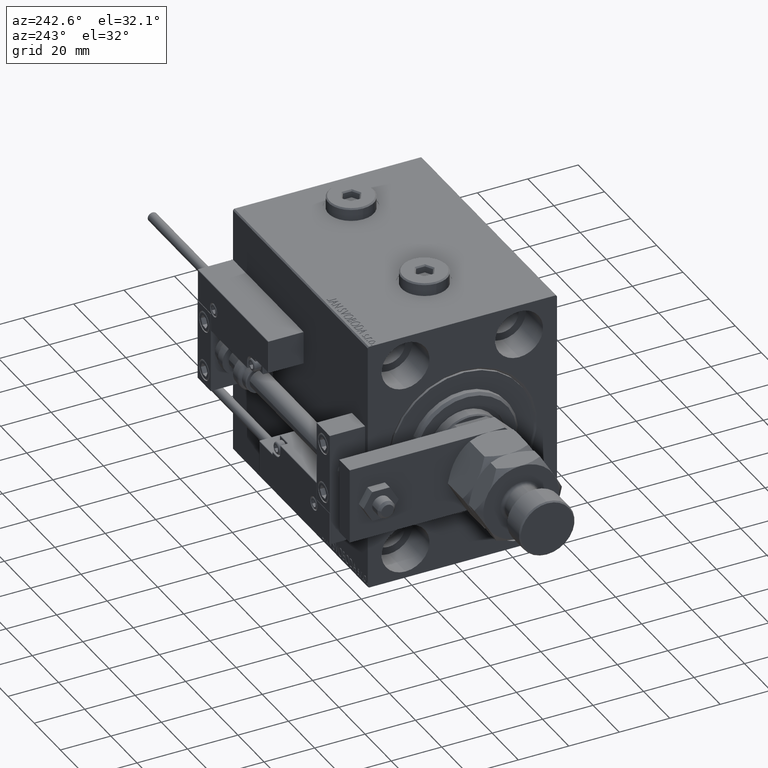
[diagram: clean part render]
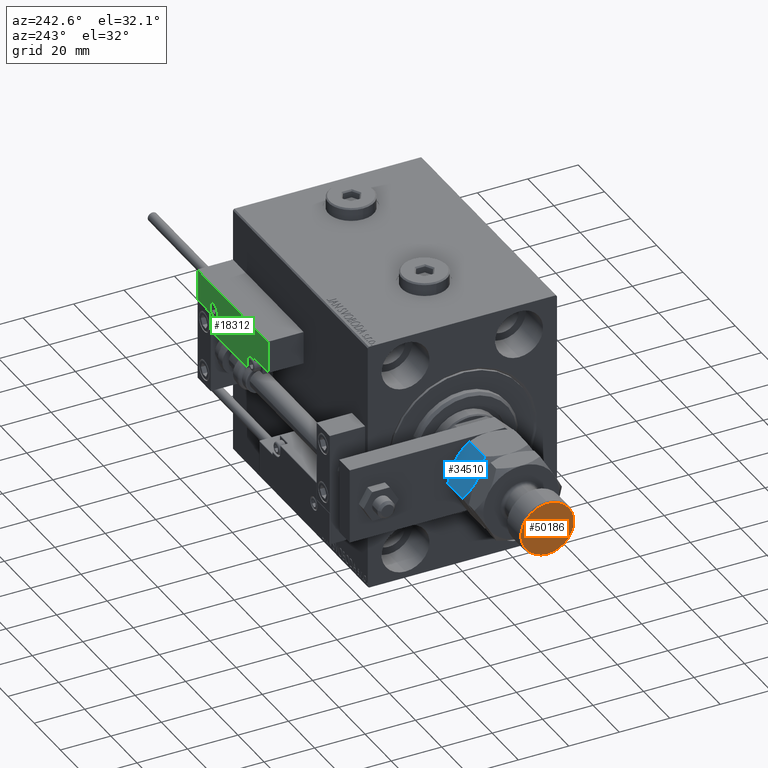
[diagram: same view with three faces highlighted in distinct colors, each labeled with its STEP entity id]
A machine part, auxiliary view with three faces highlighted in distinct colors.
Their STEP definitions:

[orange] entity #50186 — the highlighted planar face has unit normal (-1, 0, 0).
#2713 = ORIENTED_EDGE ( 'NONE', *, *, #11559, .T. ) ;
#7839 = PLANE ( 'NONE',  #14528 ) ;
#11559 = EDGE_CURVE ( 'NONE', #34586, #16373, #27942, .T. ) ;
#14244 = DIRECTION ( 'NONE',  ( 1.000000000000000000, 0.000000000000000000, 0.000000000000000000 ) ) ;
#14528 = AXIS2_PLACEMENT_3D ( 'NONE', #15681, #48579, #45868 ) ;
#15035 = EDGE_LOOP ( 'NONE', ( #2713, #27448 ) ) ;
#15403 = FACE_OUTER_BOUND ( 'NONE', #15035, .T. ) ;
#15681 = CARTESIAN_POINT ( 'NONE',  ( 0.000000000000000000, 0.000000000000000000, 45.00000000000000711 ) ) ;
#16373 = VERTEX_POINT ( 'NONE', #16659 ) ;
#16659 = CARTESIAN_POINT ( 'NONE',  ( 10.50000000000000178, 1.316495309083404815E-15, 45.00000000000000711 ) ) ;
#17157 = DIRECTION ( 'NONE',  ( 0.000000000000000000, 0.000000000000000000, 1.000000000000000000 ) ) ;
#22936 = CARTESIAN_POINT ( 'NONE',  ( -10.50000000000000178, 0.000000000000000000, 45.00000000000000711 ) ) ;
#23566 = CIRCLE ( 'NONE', #34724, 10.50000000000000178 ) ;
#27448 = ORIENTED_EDGE ( 'NONE', *, *, #48078, .T. ) ;
#27942 = CIRCLE ( 'NONE', #38253, 10.50000000000000178 ) ;
#33679 = CARTESIAN_POINT ( 'NONE',  ( 0.000000000000000000, 0.000000000000000000, 45.00000000000000711 ) ) ;
#34586 = VERTEX_POINT ( 'NONE', #22936 ) ;
#34724 = AXIS2_PLACEMENT_3D ( 'NONE', #33679, #38521, #14244 ) ;
#38253 = AXIS2_PLACEMENT_3D ( 'NONE', #45490, #17157, #50338 ) ;
#38521 = DIRECTION ( 'NONE',  ( 0.000000000000000000, 0.000000000000000000, 1.000000000000000000 ) ) ;
#45490 = CARTESIAN_POINT ( 'NONE',  ( 0.000000000000000000, 0.000000000000000000, 45.00000000000000711 ) ) ;
#45868 = DIRECTION ( 'NONE',  ( 1.000000000000000000, 0.000000000000000000, -0.000000000000000000 ) ) ;
#48078 = EDGE_CURVE ( 'NONE', #16373, #34586, #23566, .T. ) ;
#48579 = DIRECTION ( 'NONE',  ( 0.000000000000000000, 0.000000000000000000, 1.000000000000000000 ) ) ;
#50186 = ADVANCED_FACE ( 'NONE', ( #15403 ), #7839, .T. ) ;
#50338 = DIRECTION ( 'NONE',  ( 1.000000000000000000, 0.000000000000000000, 0.000000000000000000 ) ) ;

[blue] entity #34510 — the highlighted planar face has unit normal (-0, -0.866, -0.5).
#726 = VERTEX_POINT ( 'NONE', #41036 ) ;
#935 = CARTESIAN_POINT ( 'NONE',  ( 7.499999999999997335, 12.99038105676658184, 0.000000000000000000 ) ) ;
#1060 = CARTESIAN_POINT ( 'NONE',  ( 1.174746544192161846, 16.64226784216984356, 14.35773215783022572 ) ) ;
#1584 = CARTESIAN_POINT ( 'NONE',  ( 4.913081180497409939, 14.48393933357810504, 15.76967007806078946 ) ) ;
#1634 = AXIS2_PLACEMENT_3D ( 'NONE', #41560, #25385, #17279 ) ;
#2396 = CARTESIAN_POINT ( 'NONE',  ( 13.82389157469336283, 9.339280553791368789, 14.35851844025821400 ) ) ;
#2940 = CARTESIAN_POINT ( 'NONE',  ( 10.75222765045651663, 11.11270654730956586, 15.55242859148697576 ) ) ;
#2989 = EDGE_LOOP ( 'NONE', ( #5623, #27972, #43231, #30931, #34485, #47811 ) ) ;
#3952 = VERTEX_POINT ( 'NONE', #17572 ) ;
#3966 = CARTESIAN_POINT ( 'NONE',  ( 7.499999999999997335, 12.99038105676658184, 0.000000000000000000 ) ) ;
#5623 = ORIENTED_EDGE ( 'NONE', *, *, #9686, .F. ) ;
#6399 = VERTEX_POINT ( 'NONE', #20712 ) ;
#6446 = CARTESIAN_POINT ( 'NONE',  ( 8.156876182308252510, 12.61113341608665728, 16.00000000000000355 ) ) ;
#7956 = CARTESIAN_POINT ( 'NONE',  ( 7.621669386706803087E-17, 17.32050807568877104, 2.320508075688761718 ) ) ;
#8648 = PLANE ( 'NONE',  #1634 ) ;
#9011 = CARTESIAN_POINT ( 'NONE',  ( 6.176419610670692784, 13.75455055083996214, 0.05953537397470201609 ) ) ;
#9400 = CARTESIAN_POINT ( 'NONE',  ( 2.383929548160350631, 15.94414570932928576, 14.93952096862913059 ) ) ;
#9686 = EDGE_CURVE ( 'NONE', #28449, #6399, #26691, .T. ) ;
#12341 = CARTESIAN_POINT ( 'NONE',  ( 12.61607045183964715, 10.03661640420386902, 1.060479031370879843 ) ) ;
#12935 = CARTESIAN_POINT ( 'NONE',  ( 7.500000000000000000, 12.99038105676657651, 16.00000000000000000 ) ) ;
#13898 = EDGE_CURVE ( 'NONE', #6399, #3952, #32847, .T. ) ;
#16058 = CARTESIAN_POINT ( 'NONE',  ( 7.621669386706803087E-17, 17.32050807568877104, 2.320508075688761718 ) ) ;
#16899 = CARTESIAN_POINT ( 'NONE',  ( 15.00000000000000000, 8.660254037844389075, 2.320508075688765715 ) ) ;
#17279 = DIRECTION ( 'NONE',  ( 0.8660254037844387076, -0.4999999999999997224, 0.000000000000000000 ) ) ;
#17572 = CARTESIAN_POINT ( 'NONE',  ( 15.00000000000000000, 8.660254037844389075, 2.320508075688765715 ) ) ;
#19639 = B_SPLINE_CURVE_WITH_KNOTS ( 'NONE', 3,
 ( #48254, #2396, #51763, #2940, #47458, #44200, #6446, #39616 ),
 .UNSPECIFIED., .F., .F.,
 ( 4, 2, 2, 4 ),
 ( 2.544309033641602453E-07, 0.004488823491893906975, 0.006733108022389177119, 0.008977392552884448998 ),
 .UNSPECIFIED. ) ;
#20712 = CARTESIAN_POINT ( 'NONE',  ( 7.499999999999997335, 12.99038105676658184, 0.000000000000000000 ) ) ;
#21446 = CARTESIAN_POINT ( 'NONE',  ( 0.000000000000000000, 17.32050807568877104, 16.00000000000000000 ) ) ;
#21967 = CARTESIAN_POINT ( 'NONE',  ( 4.881674457977373649, 14.50207201327941320, 0.2838026619462936107 ) ) ;
#24279 = VERTEX_POINT ( 'NONE', #37193 ) ;
#24430 = CARTESIAN_POINT ( 'NONE',  ( 1.176108425306640504, 16.64148155974179843, 1.641481559741787111 ) ) ;
#25272 = CARTESIAN_POINT ( 'NONE',  ( 10.08691881950258740, 11.49682277995505331, 0.2303299219392160591 ) ) ;
#25276 = EDGE_CURVE ( 'NONE', #52059, #24279, #50170, .T. ) ;
#25385 = DIRECTION ( 'NONE',  ( -0.4999999999999997780, -0.8660254037844388186, 0.000000000000000000 ) ) ;
#25484 = CARTESIAN_POINT ( 'NONE',  ( 6.843123817691747490, 13.36962869744650639, -3.557538378468061917E-16 ) ) ;
#25606 = CARTESIAN_POINT ( 'NONE',  ( 3.803331551779305683E-16, 17.32050807568877104, 13.67949192431124317 ) ) ;
#26691 = B_SPLINE_CURVE_WITH_KNOTS ( 'NONE', 3,
 ( #7956, #24430, #40860, #53261, #21967, #9011, #25484, #935 ),
 .UNSPECIFIED., .F., .F.,
 ( 4, 2, 2, 4 ),
 ( 2.544309033652185071E-07, 0.004488823491893902638, 0.006733108022389172782, 0.008977392552884443794 ),
 .UNSPECIFIED. ) ;
#27972 = ORIENTED_EDGE ( 'NONE', *, *, #43256, .F. ) ;
#28449 = VERTEX_POINT ( 'NONE', #16058 ) ;
#29802 = EDGE_CURVE ( 'NONE', #726, #52059, #19639, .T. ) ;
#30931 = ORIENTED_EDGE ( 'NONE', *, *, #29802, .F. ) ;
#32847 = B_SPLINE_CURVE_WITH_KNOTS ( 'NONE', 3,
 ( #3966, #36855, #25272, #12341, #41444, #16899 ),
 .UNSPECIFIED., .F., .F.,
 ( 4, 2, 4 ),
 ( 0.008977392552884443794, 0.01343452311421656532, 0.01789165367554868685 ),
 .UNSPECIFIED. ) ;
#33045 = DIRECTION ( 'NONE',  ( -0.000000000000000000, -0.000000000000000000, -1.000000000000000000 ) ) ;
#33399 = LINE ( 'NONE', #44487, #40434 ) ;
#34485 = ORIENTED_EDGE ( 'NONE', *, *, #40017, .T. ) ;
#34510 = ADVANCED_FACE ( 'NONE', ( #49387 ), #8648, .F. ) ;
#36855 = CARTESIAN_POINT ( 'NONE',  ( 8.804550678576910983, 12.23719837131869426, -5.031375706690542042E-16 ) ) ;
#37193 = CARTESIAN_POINT ( 'NONE',  ( 3.803331551779305683E-16, 17.32050807568877104, 13.67949192431124317 ) ) ;
#37892 = LINE ( 'NONE', #21446, #44875 ) ;
#38533 = CARTESIAN_POINT ( 'NONE',  ( 6.195449321423087241, 13.74356374221446764, 16.00000000000000355 ) ) ;
#39616 = CARTESIAN_POINT ( 'NONE',  ( 7.500000000000000000, 12.99038105676657651, 16.00000000000000000 ) ) ;
#39946 = CARTESIAN_POINT ( 'NONE',  ( 7.500000000000000000, 12.99038105676657651, 16.00000000000000000 ) ) ;
#40017 = EDGE_CURVE ( 'NONE', #726, #3952, #33399, .T. ) ;
#40434 = VECTOR ( 'NONE', #50664, 1000.000000000000000 ) ;
#40860 = CARTESIAN_POINT ( 'NONE',  ( 2.378834511187503331, 15.94708733029709080, 1.064486067744004671 ) ) ;
#41036 = CARTESIAN_POINT ( 'NONE',  ( 15.00000000000000000, 8.660254037844389075, 13.67949192431123784 ) ) ;
#41444 = CARTESIAN_POINT ( 'NONE',  ( 13.82525345580783949, 9.338494271363313004, 1.642267842169781833 ) ) ;
#41560 = CARTESIAN_POINT ( 'NONE',  ( 15.00000000000000000, 8.660254037844389075, 16.00000000000000000 ) ) ;
#43231 = ORIENTED_EDGE ( 'NONE', *, *, #25276, .F. ) ;
#43256 = EDGE_CURVE ( 'NONE', #24279, #28449, #37892, .T. ) ;
#44200 = CARTESIAN_POINT ( 'NONE',  ( 8.823580389329306328, 12.22621156269319798, 15.94046462602529957 ) ) ;
#44487 = CARTESIAN_POINT ( 'NONE',  ( 15.00000000000000000, 8.660254037844389075, 16.00000000000000000 ) ) ;
#44875 = VECTOR ( 'NONE', #33045, 1000.000000000000000 ) ;
#47458 = CARTESIAN_POINT ( 'NONE',  ( 10.11832554202262457, 11.47869010025374514, 15.71619733805371411 ) ) ;
#47811 = ORIENTED_EDGE ( 'NONE', *, *, #13898, .F. ) ;
#48254 = CARTESIAN_POINT ( 'NONE',  ( 15.00000000000000000, 8.660254037844389075, 13.67949192431123784 ) ) ;
#49387 = FACE_OUTER_BOUND ( 'NONE', #2989, .T. ) ;
#50170 = B_SPLINE_CURVE_WITH_KNOTS ( 'NONE', 3,
 ( #12935, #38533, #1584, #9400, #1060, #25606 ),
 .UNSPECIFIED., .F., .F.,
 ( 4, 2, 4 ),
 ( 0.008977392552884448998, 0.01343452311421656706, 0.01789165367554868338 ),
 .UNSPECIFIED. ) ;
#50664 = DIRECTION ( 'NONE',  ( -0.000000000000000000, -0.000000000000000000, -1.000000000000000000 ) ) ;
#51763 = CARTESIAN_POINT ( 'NONE',  ( 12.62116548881249756, 10.03367478323606221, 14.93551393225599710 ) ) ;
#52059 = VERTEX_POINT ( 'NONE', #39946 ) ;
#53261 = CARTESIAN_POINT ( 'NONE',  ( 4.247772349543482484, 14.86805556622358893, 0.4475714085130255149 ) ) ;

[green] entity #18312 — the highlighted planar face has unit normal (0, 1, -0).
#1555 = VERTEX_POINT ( 'NONE', #20301 ) ;
#1560 = EDGE_CURVE ( 'NONE', #44422, #36972, #21518, .T. ) ;
#2404 = LINE ( 'NONE', #18596, #7245 ) ;
#2581 = LINE ( 'NONE', #19038, #29599 ) ;
#2773 = FACE_OUTER_BOUND ( 'NONE', #29240, .T. ) ;
#3345 = LINE ( 'NONE', #27627, #39531 ) ;
#3702 = LINE ( 'NONE', #24994, #9023 ) ;
#5523 = CIRCLE ( 'NONE', #39087, 3.299999999999997158 ) ;
#5590 = ORIENTED_EDGE ( 'NONE', *, *, #50034, .T. ) ;
#6432 = DIRECTION ( 'NONE',  ( 0.000000000000000000, -0.000000000000000000, -1.000000000000000000 ) ) ;
#6455 = VECTOR ( 'NONE', #7426, 1000.000000000000000 ) ;
#6852 = CARTESIAN_POINT ( 'NONE',  ( -11.99999999999994849, 9.800000000000004263, 14.00000000000000000 ) ) ;
#7245 = VECTOR ( 'NONE', #52300, 1000.000000000000000 ) ;
#7411 = VERTEX_POINT ( 'NONE', #9954 ) ;
#7426 = DIRECTION ( 'NONE',  ( -0.000000000000000000, 1.000000000000000000, -0.000000000000000000 ) ) ;
#8334 = VECTOR ( 'NONE', #46246, 1000.000000000000000 ) ;
#9023 = VECTOR ( 'NONE', #27978, 1000.000000000000000 ) ;
#9684 = DIRECTION ( 'NONE',  ( 1.000000000000000000, 0.000000000000000000, 0.000000000000000000 ) ) ;
#9714 = ORIENTED_EDGE ( 'NONE', *, *, #51315, .T. ) ;
#9954 = CARTESIAN_POINT ( 'NONE',  ( 26.70000000000006324, 19.70000000000001705, 14.00000000000000000 ) ) ;
#10556 = EDGE_CURVE ( 'NONE', #36972, #44422, #38224, .T. ) ;
#10837 = AXIS2_PLACEMENT_3D ( 'NONE', #39984, #27850, #43240 ) ;
#11449 = DIRECTION ( 'NONE',  ( 1.000000000000000000, -0.000000000000000000, 0.000000000000000000 ) ) ;
#11668 = CARTESIAN_POINT ( 'NONE',  ( -17.59999999999994813, 9.800000000000004263, 14.00000000000000000 ) ) ;
#11850 = EDGE_CURVE ( 'NONE', #23110, #42832, #2404, .T. ) ;
#11871 = VERTEX_POINT ( 'NONE', #40159 ) ;
#12213 = CARTESIAN_POINT ( 'NONE',  ( -14.79999999999994920, 9.800000000000004263, 14.00000000000000000 ) ) ;
#13063 = EDGE_CURVE ( 'NONE', #1555, #7411, #3702, .T. ) ;
#13818 = CARTESIAN_POINT ( 'NONE',  ( 10.69999999999999929, 3.000000000000003109, 14.00000000000000000 ) ) ;
#14119 = CARTESIAN_POINT ( 'NONE',  ( -16.69999999999999218, 0.3000000000000032085, 14.00000000000000000 ) ) ;
#14225 = EDGE_CURVE ( 'NONE', #32753, #23110, #2581, .T. ) ;
#14369 = EDGE_CURVE ( 'NONE', #29384, #32753, #5523, .T. ) ;
#15091 = EDGE_CURVE ( 'NONE', #7411, #11871, #16968, .T. ) ;
#16739 = LINE ( 'NONE', #49907, #31803 ) ;
#16968 = LINE ( 'NONE', #27194, #28778 ) ;
#17059 = DIRECTION ( 'NONE',  ( -8.006416042969869188E-16, -1.000000000000000000, 0.000000000000000000 ) ) ;
#17512 = ORIENTED_EDGE ( 'NONE', *, *, #35167, .T. ) ;
#18147 = VERTEX_POINT ( 'NONE', #14119 ) ;
#18312 = ADVANCED_FACE ( 'NONE', ( #51590, #2773 ), #26789, .T. ) ;
#18596 = CARTESIAN_POINT ( 'NONE',  ( 16.69999999999999929, 7.000000000000009770, 14.00000000000000000 ) ) ;
#19038 = CARTESIAN_POINT ( 'NONE',  ( 17.00000000000000000, 6.300000000000003375, 14.00000000000000000 ) ) ;
#19764 = DIRECTION ( 'NONE',  ( 0.000000000000000000, -0.000000000000000000, -1.000000000000000000 ) ) ;
#20301 = CARTESIAN_POINT ( 'NONE',  ( 26.70000000000006324, 7.300000000000007816, 14.00000000000000000 ) ) ;
#20534 = ORIENTED_EDGE ( 'NONE', *, *, #25901, .T. ) ;
#21518 = CIRCLE ( 'NONE', #51658, 2.800000000000000266 ) ;
#22312 = CARTESIAN_POINT ( 'NONE',  ( 13.99999999999999822, 6.300000000000001599, 14.00000000000000000 ) ) ;
#22426 = EDGE_CURVE ( 'NONE', #37853, #29384, #28463, .T. ) ;
#23110 = VERTEX_POINT ( 'NONE', #43088 ) ;
#23891 = ORIENTED_EDGE ( 'NONE', *, *, #35097, .T. ) ;
#24333 = ORIENTED_EDGE ( 'NONE', *, *, #1560, .T. ) ;
#24520 = CARTESIAN_POINT ( 'NONE',  ( -16.69999999999999218, 7.300000000000003375, 14.00000000000000000 ) ) ;
#24994 = CARTESIAN_POINT ( 'NONE',  ( 26.70000000000006324, 20.00000000000001776, 14.00000000000000000 ) ) ;
#25221 = CARTESIAN_POINT ( 'NONE',  ( -26.69999999999994600, 7.300000000000005151, 14.00000000000000000 ) ) ;
#25486 = CARTESIAN_POINT ( 'NONE',  ( -16.99999999999999289, 7.300000000000003375, 14.00000000000000000 ) ) ;
#25901 = EDGE_CURVE ( 'NONE', #25932, #51531, #30052, .T. ) ;
#25932 = VERTEX_POINT ( 'NONE', #25221 ) ;
#26789 = PLANE ( 'NONE',  #10837 ) ;
#27194 = CARTESIAN_POINT ( 'NONE',  ( -26.99999999999993605, 19.70000000000002061, 14.00000000000000000 ) ) ;
#27627 = CARTESIAN_POINT ( 'NONE',  ( 11.00000000000000000, 0.3000000000000032085, 14.00000000000000000 ) ) ;
#27850 = DIRECTION ( 'NONE',  ( -0.000000000000000000, 0.000000000000000000, 1.000000000000000000 ) ) ;
#27978 = DIRECTION ( 'NONE',  ( 0.000000000000000000, 1.000000000000000000, -0.000000000000000000 ) ) ;
#28463 = LINE ( 'NONE', #40862, #6455 ) ;
#28778 = VECTOR ( 'NONE', #34997, 1000.000000000000000 ) ;
#28902 = ORIENTED_EDGE ( 'NONE', *, *, #14225, .T. ) ;
#29240 = EDGE_LOOP ( 'NONE', ( #17512, #23891, #38003, #46073, #28902, #29613, #9714, #37527, #32899, #5590, #20534 ) ) ;
#29384 = VERTEX_POINT ( 'NONE', #13818 ) ;
#29599 = VECTOR ( 'NONE', #35479, 1000.000000000000000 ) ;
#29613 = ORIENTED_EDGE ( 'NONE', *, *, #11850, .T. ) ;
#30052 = LINE ( 'NONE', #25486, #8334 ) ;
#30267 = CARTESIAN_POINT ( 'NONE',  ( -26.69999999999994600, 7.000000000000005329, 14.00000000000000000 ) ) ;
#31803 = VECTOR ( 'NONE', #42358, 1000.000000000000000 ) ;
#32753 = VERTEX_POINT ( 'NONE', #22312 ) ;
#32899 = ORIENTED_EDGE ( 'NONE', *, *, #15091, .T. ) ;
#34301 = LINE ( 'NONE', #30267, #48145 ) ;
#34997 = DIRECTION ( 'NONE',  ( -1.000000000000000000, 6.424901762877063495E-17, -0.000000000000000000 ) ) ;
#35097 = EDGE_CURVE ( 'NONE', #18147, #37853, #3345, .T. ) ;
#35167 = EDGE_CURVE ( 'NONE', #51531, #18147, #39765, .T. ) ;
#35479 = DIRECTION ( 'NONE',  ( 1.000000000000000000, 5.782411586589357639E-16, -0.000000000000000000 ) ) ;
#36737 = DIRECTION ( 'NONE',  ( 1.000000000000000000, 0.000000000000000000, 0.000000000000000000 ) ) ;
#36972 = VERTEX_POINT ( 'NONE', #11668 ) ;
#37527 = ORIENTED_EDGE ( 'NONE', *, *, #13063, .T. ) ;
#37690 = CARTESIAN_POINT ( 'NONE',  ( 16.69999999999999929, 7.300000000000009592, 14.00000000000000000 ) ) ;
#37853 = VERTEX_POINT ( 'NONE', #39093 ) ;
#38003 = ORIENTED_EDGE ( 'NONE', *, *, #22426, .T. ) ;
#38224 = CIRCLE ( 'NONE', #40793, 2.800000000000000266 ) ;
#39087 = AXIS2_PLACEMENT_3D ( 'NONE', #45172, #44908, #44633 ) ;
#39093 = CARTESIAN_POINT ( 'NONE',  ( 10.69999999999999929, 0.3000000000000032085, 14.00000000000000000 ) ) ;
#39531 = VECTOR ( 'NONE', #11449, 1000.000000000000000 ) ;
#39765 = LINE ( 'NONE', #43808, #50769 ) ;
#39984 = CARTESIAN_POINT ( 'NONE',  ( 0.000000000000000000, 0.000000000000000000, 14.00000000000000000 ) ) ;
#40159 = CARTESIAN_POINT ( 'NONE',  ( -26.69999999999993534, 19.70000000000002061, 14.00000000000000000 ) ) ;
#40793 = AXIS2_PLACEMENT_3D ( 'NONE', #46907, #6432, #9684 ) ;
#40862 = CARTESIAN_POINT ( 'NONE',  ( 10.69999999999999929, 3.000000000000003109, 14.00000000000000000 ) ) ;
#42358 = DIRECTION ( 'NONE',  ( 1.000000000000000000, -1.734723475976796001E-16, 0.000000000000000000 ) ) ;
#42832 = VERTEX_POINT ( 'NONE', #37690 ) ;
#43088 = CARTESIAN_POINT ( 'NONE',  ( 16.69999999999999929, 6.300000000000003375, 14.00000000000000000 ) ) ;
#43240 = DIRECTION ( 'NONE',  ( 1.000000000000000000, 0.000000000000000000, 0.000000000000000000 ) ) ;
#43566 = EDGE_LOOP ( 'NONE', ( #24333, #52334 ) ) ;
#43808 = CARTESIAN_POINT ( 'NONE',  ( -16.69999999999999218, 3.252606517456513302E-15, 14.00000000000000000 ) ) ;
#44422 = VERTEX_POINT ( 'NONE', #6852 ) ;
#44633 = DIRECTION ( 'NONE',  ( 1.000000000000000000, 0.000000000000000000, 0.000000000000000000 ) ) ;
#44908 = DIRECTION ( 'NONE',  ( 0.000000000000000000, -0.000000000000000000, -1.000000000000000000 ) ) ;
#45172 = CARTESIAN_POINT ( 'NONE',  ( 13.99999999999999822, 3.000000000000002665, 14.00000000000000000 ) ) ;
#46073 = ORIENTED_EDGE ( 'NONE', *, *, #14369, .T. ) ;
#46246 = DIRECTION ( 'NONE',  ( 1.000000000000000000, -1.734723475976815230E-16, 0.000000000000000000 ) ) ;
#46907 = CARTESIAN_POINT ( 'NONE',  ( -14.79999999999994920, 9.800000000000004263, 14.00000000000000000 ) ) ;
#47603 = DIRECTION ( 'NONE',  ( 0.000000000000000000, -1.000000000000000000, 0.000000000000000000 ) ) ;
#48145 = VECTOR ( 'NONE', #17059, 1000.000000000000000 ) ;
#49907 = CARTESIAN_POINT ( 'NONE',  ( 27.00000000000006395, 7.300000000000007816, 14.00000000000000000 ) ) ;
#50034 = EDGE_CURVE ( 'NONE', #11871, #25932, #34301, .T. ) ;
#50769 = VECTOR ( 'NONE', #47603, 1000.000000000000000 ) ;
#51315 = EDGE_CURVE ( 'NONE', #42832, #1555, #16739, .T. ) ;
#51531 = VERTEX_POINT ( 'NONE', #24520 ) ;
#51590 = FACE_BOUND ( 'NONE', #43566, .T. ) ;
#51658 = AXIS2_PLACEMENT_3D ( 'NONE', #12213, #19764, #36737 ) ;
#52300 = DIRECTION ( 'NONE',  ( 9.912705577010318647E-16, 1.000000000000000000, 0.000000000000000000 ) ) ;
#52334 = ORIENTED_EDGE ( 'NONE', *, *, #10556, .T. ) ;